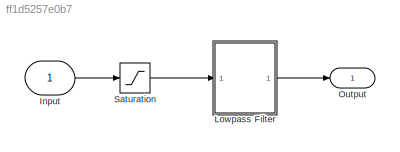
MODEL slx_ff1d5257e0b7
KIND model
BLOCK [Inport] Input
  IconDisplay = Port number
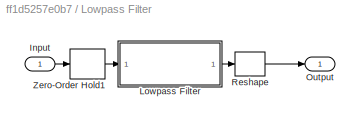
BLOCK [SubSystem] Lowpass Filter
  Ports = [1, 1]
  RequestExecContextInheritance = off
BLOCK [Inport] Lowpass Filter/Input
  IconDisplay = Port number
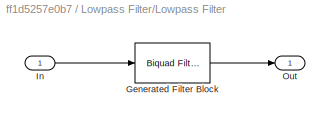
BLOCK [SubSystem] Lowpass Filter/Lowpass Filter
  CopyFcn = fdesignblkfcn(gcbh, {'CopyFcn'});
  DialogController = fdesignblkfcn
  InitFcn = fdesignblkfcn(gcbh, {'InitFcn'});
  Ports = [1, 1]
  RequestExecContextInheritance = off
  UserDataPersistent = on
BLOCK [Reference] Lowpass Filter/Lowpass Filter/Generated Filter Block  REF=dsparch4/Biquad Filter
  BiQuadCoeffs = [1.1139495474470017e-05 2.2278990948940034e-05 1.1139495474470017e-05 1 -1.9975472496899784 0.99760587630988296;1.708449290031526e-05 3.4168985800630521e-05 1.708449290031526e-05 1 -1.99387457640288 0.99393309523238282;2.1150286544110928e-05 4.2300573088221855e-05 2.1150286544110928e-05 1 -1.9905941002634866 0.99065252281330018;2.3741131754506419e-05 4.7482263509012838e-05 2.3741131754506419e-05 1...<+2357ch>
  CoeffSource = Specify via dialog
  FilterSource = Specify via dialog
  IC = 0
  ICden = 0
  ICnum = 0
  IIRFiltStruct = Direct form II
  InputProcessing = Columns as channels (frame based)
  LockScale = off
  Ports = [1, 1]
  ScaleValueMode = Specify via input port (g)
  ScaleValues = [1.8320818000818615e-05;1;1;1;1;1;1;1;1;1;1;1;1;1;1;1;1;1;1;1;1;1;1;1;1;1]
  SourceBlock = dsparch4/Biquad Filter
  SourceType = Biquad Filter
  Tag = BlockMethodSubSystem
  UserDataPersistent = on
  a0Flag = Warning
  accumFracLength = 30
  accumMode = Same as product output
  accumWordLength = 32
  allowOverrides = on
  denAccumFracLength = 30
  denProdOutputFracLength = 30
  dfiltObjectName = dfilt.df2tsos([1 0.3 0.4],[1 0.1 0.2])
  firstCoeffFracLength = 15
  firstCoeffMode = Same word length as input
  firstCoeffWordLength = 16
  memoryFracLength = 15
  memoryMode = Same as accumulator
  memoryWordLength = 16
  multiplicandFracLength = 30
  multiplicandMode = Same as output
  multiplicandWordLength = 32
  optimizeScaleValues = off
  outputFracLength = 15
  outputMode = Same as accumulator
  outputWordLength = 16
  overflowMode = off
  prodOutputFracLength = 30
  prodOutputMode = Same as input
  prodOutputWordLength = 32
  roundingMode = Floor
  scaleValueFracLength = 14
  secondCoeffFracLength = 15
  secondCoeffMode = Same as numerator
  secondCoeffWordLength = 16
  secondMemoryFracLength = 15
  stageInputFracLength = 15
  stageInputMode = Same as input
  stageInputWordLength = 16
  stageOutputFracLength = 15
  stageOutputMode = Same as section input
  stageOutputWordLength = 16
BLOCK [Inport] Lowpass Filter/Lowpass Filter/In
  IconDisplay = Port number
BLOCK [Outport] Lowpass Filter/Lowpass Filter/Out
  IconDisplay = Port number
BLOCK [Outport] Lowpass Filter/Output
  IconDisplay = Port number
BLOCK [Reshape] Lowpass Filter/Reshape
  Ports = [1, 1]
BLOCK [ZeroOrderHold] Lowpass Filter/Zero-Order Hold1
  SampleTime = -1
BLOCK [Outport] Output
  IconDisplay = Port number
BLOCK [Saturate] Saturation
  InputPortMap = u0
  LowerLimit = 0
  Ports = [1, 1]
  UpperLimit = inf
LINE Input:1 -> Saturation:1
LINE Lowpass Filter/Input:1 -> Lowpass Filter/Zero-Order Hold1:1
LINE Lowpass Filter/Lowpass Filter:1 -> Lowpass Filter/Reshape:1
LINE Lowpass Filter/Reshape:1 -> Lowpass Filter/Output:1
LINE Lowpass Filter/Zero-Order Hold1:1 -> Lowpass Filter/Lowpass Filter:1
LINE Lowpass Filter:1 -> Output:1
LINE Saturation:1 -> Lowpass Filter:1
